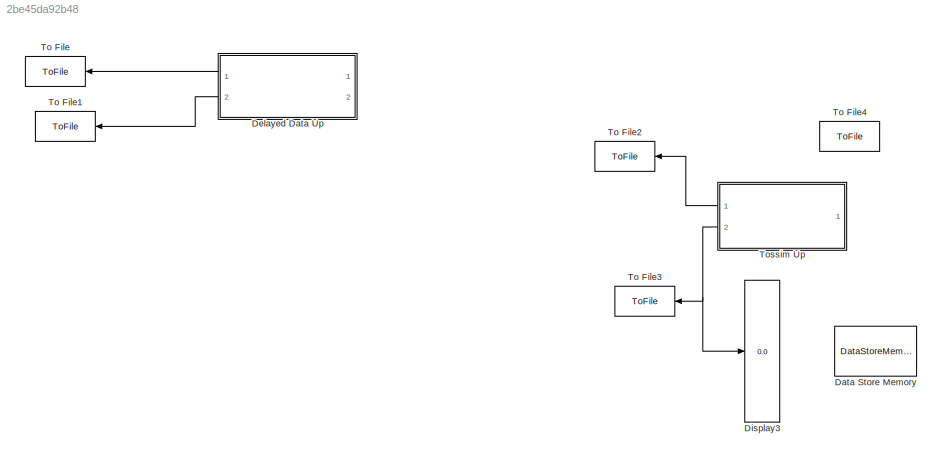
MODEL slx_2be45da92b48
KIND model
CONFIG AbsTol = auto
CONFIG EnableMultiTasking = off
CONFIG FixedStep = auto
CONFIG MaxStep = auto
CONFIG MinStep = auto
CONFIG RelTol = 1e-3
CONFIG SampleTimeConstraint = Unconstrained
CONFIG Solver = VariableStepAuto
CONFIG SolverName = VariableStepAuto
CONFIG StartTime = 0.0
CONFIG StopTime = 10.0
BLOCK [DataStoreMemory] Data Store Memory
  DataStoreName = ydelay_global
  InitialValue = [1; 1; 1; 1; 1; 1; 1; 1; 1; 1; 1; 1; 1; 1; 1]
  OutDataTypeStr = uint32
  ReadBeforeWriteMsg = warning
  ShowAdditionalParam = off
  SignalType = real
  WriteAfterReadMsg = warning
  WriteAfterWriteMsg = warning
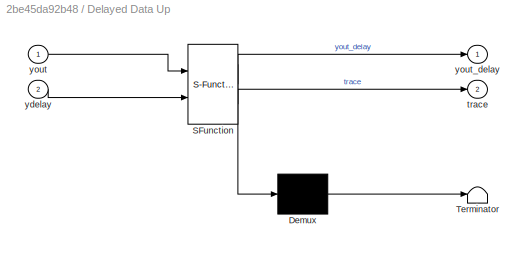
BLOCK [SubSystem] Delayed Data Up
  ErrorFcn = Stateflow.Translate.translate
  PermitHierarchicalResolution = ExplicitOnly
  Ports = [2, 2]
  RequestExecContextInheritance = off
  SFBlockType = MATLAB Function
  TreatAsAtomicUnit = on
BLOCK [Demux] Delayed Data Up/ Demux 
  Outputs = 1
  Ports = [1, 1]
BLOCK [S-Function] Delayed Data Up/ SFunction 
  EnableBusSupport = on
  FunctionName = sf_sfun
  Parameters = structure
  PortCounts = [2 3]
  Ports = [2, 3]
  SFcnIsStateOwnerBlock = off
  SFunctionDeploymentMode = off
  Tag = Stateflow S-Function dummy 2
BLOCK [Terminator] Delayed Data Up/ Terminator 
BLOCK [Outport] Delayed Data Up/trace
  IconDisplay = Port number
  Port = 2
BLOCK [Inport] Delayed Data Up/ydelay
  IconDisplay = Port number
  Port = 2
BLOCK [Inport] Delayed Data Up/yout
  IconDisplay = Port number
BLOCK [Outport] Delayed Data Up/yout_delay
  IconDisplay = Port number
BLOCK [Display] Display3
  Decimation = 1
  Ports = [1]
BLOCK [ToFile] To File
  Filename = yout_delay
  MatrixName = yout_delay1
  Ports = [1]
  SampleTime = 1
BLOCK [ToFile] To File1
  Filename = trace
  MatrixName = trace1
  Ports = [1]
  SampleTime = 1
BLOCK [ToFile] To File2
  Filename = ymea1
  MatrixName = ymea1
  Ports = [1]
  SampleTime = 1
BLOCK [ToFile] To File3
  Filename = ydelay
  MatrixName = ydelay
  Ports = [1]
  SampleTime = 1
BLOCK [ToFile] To File4
  Filename = ymea
  MatrixName = ymea
  Ports = [1]
  SampleTime = 1
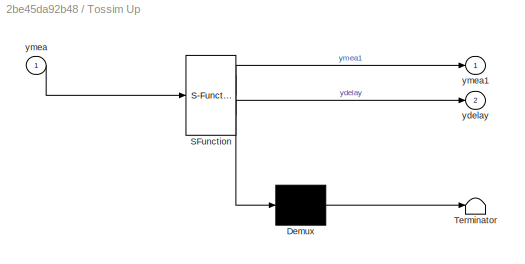
BLOCK [SubSystem] Tossim Up
  ErrorFcn = Stateflow.Translate.translate
  PermitHierarchicalResolution = ExplicitOnly
  Ports = [1, 2]
  RequestExecContextInheritance = off
  SFBlockType = MATLAB Function
  TreatAsAtomicUnit = on
BLOCK [Demux] Tossim Up/ Demux 
  Outputs = 1
  Ports = [1, 1]
BLOCK [S-Function] Tossim Up/ SFunction 
  EnableBusSupport = on
  FunctionName = sf_sfun
  PortCounts = [1 3]
  Ports = [1, 3]
  SFcnIsStateOwnerBlock = off
  SFunctionDeploymentMode = off
  Tag = Stateflow S-Function dummy 1
BLOCK [Terminator] Tossim Up/ Terminator 
BLOCK [Outport] Tossim Up/ydelay
  IconDisplay = Port number
  Port = 2
BLOCK [Inport] Tossim Up/ymea
  IconDisplay = Port number
BLOCK [Outport] Tossim Up/ymea1
  IconDisplay = Port number
LINE Delayed Data Up:1 -> To File:1
LINE Delayed Data Up:2 -> To File1:1
LINE Tossim Up:1 -> To File2:1
NET Tossim Up:2 -> Display3:1, To File3:1
note: NET lines group one-source signal fan-out (src -> all destinations, sorted); 1:1 wires keep LINE
CHART Tossim Up states=1 transitions=1
  STATE_LABEL 'eML_blk_kernel()'
  STATE_LABEL "SCRIPT:\nfunction [ymea1, ydelay]  = Tossim_block(ymea)\n% Inputs:\n% ymea: measurement from structure\n% Outputs:\n% ymea1: measurement output\n% ydelay: delay traces\npersistent delay1 past_ymea csi_ydelay% delay trace\npersistent i  % count\nglobal ydelay_global\n\n\n% allow these matlab functions to be used in Embedded Matlab block\neml.extrinsic('python');\neml.extrinsic('num2str');\neml.extrinsic('str2num'...<+917ch>"
CHART Delayed Data Up states=1 transitions=1
  STATE_LABEL 'eML_blk_kernel()'
  STATE_LABEL "SCRIPT:\nfunction [yout_delay,trace]   = delay_block(yout,ydelay, structure)\n\n% Inputs: \n% yout: measurements output\n% ydelay: delay traces\n% structure: other necessary information \n% Inputs: \n% yout: measurements output\n% ydelay: delay traces\n% Outputs:\n% yout_delay: delayed measurements output for controller\n\npersistent  i yin_d \npersistent yin delay yin_all num past_y\neml.extrinsic('disp');\n\nste...<+680ch>"
